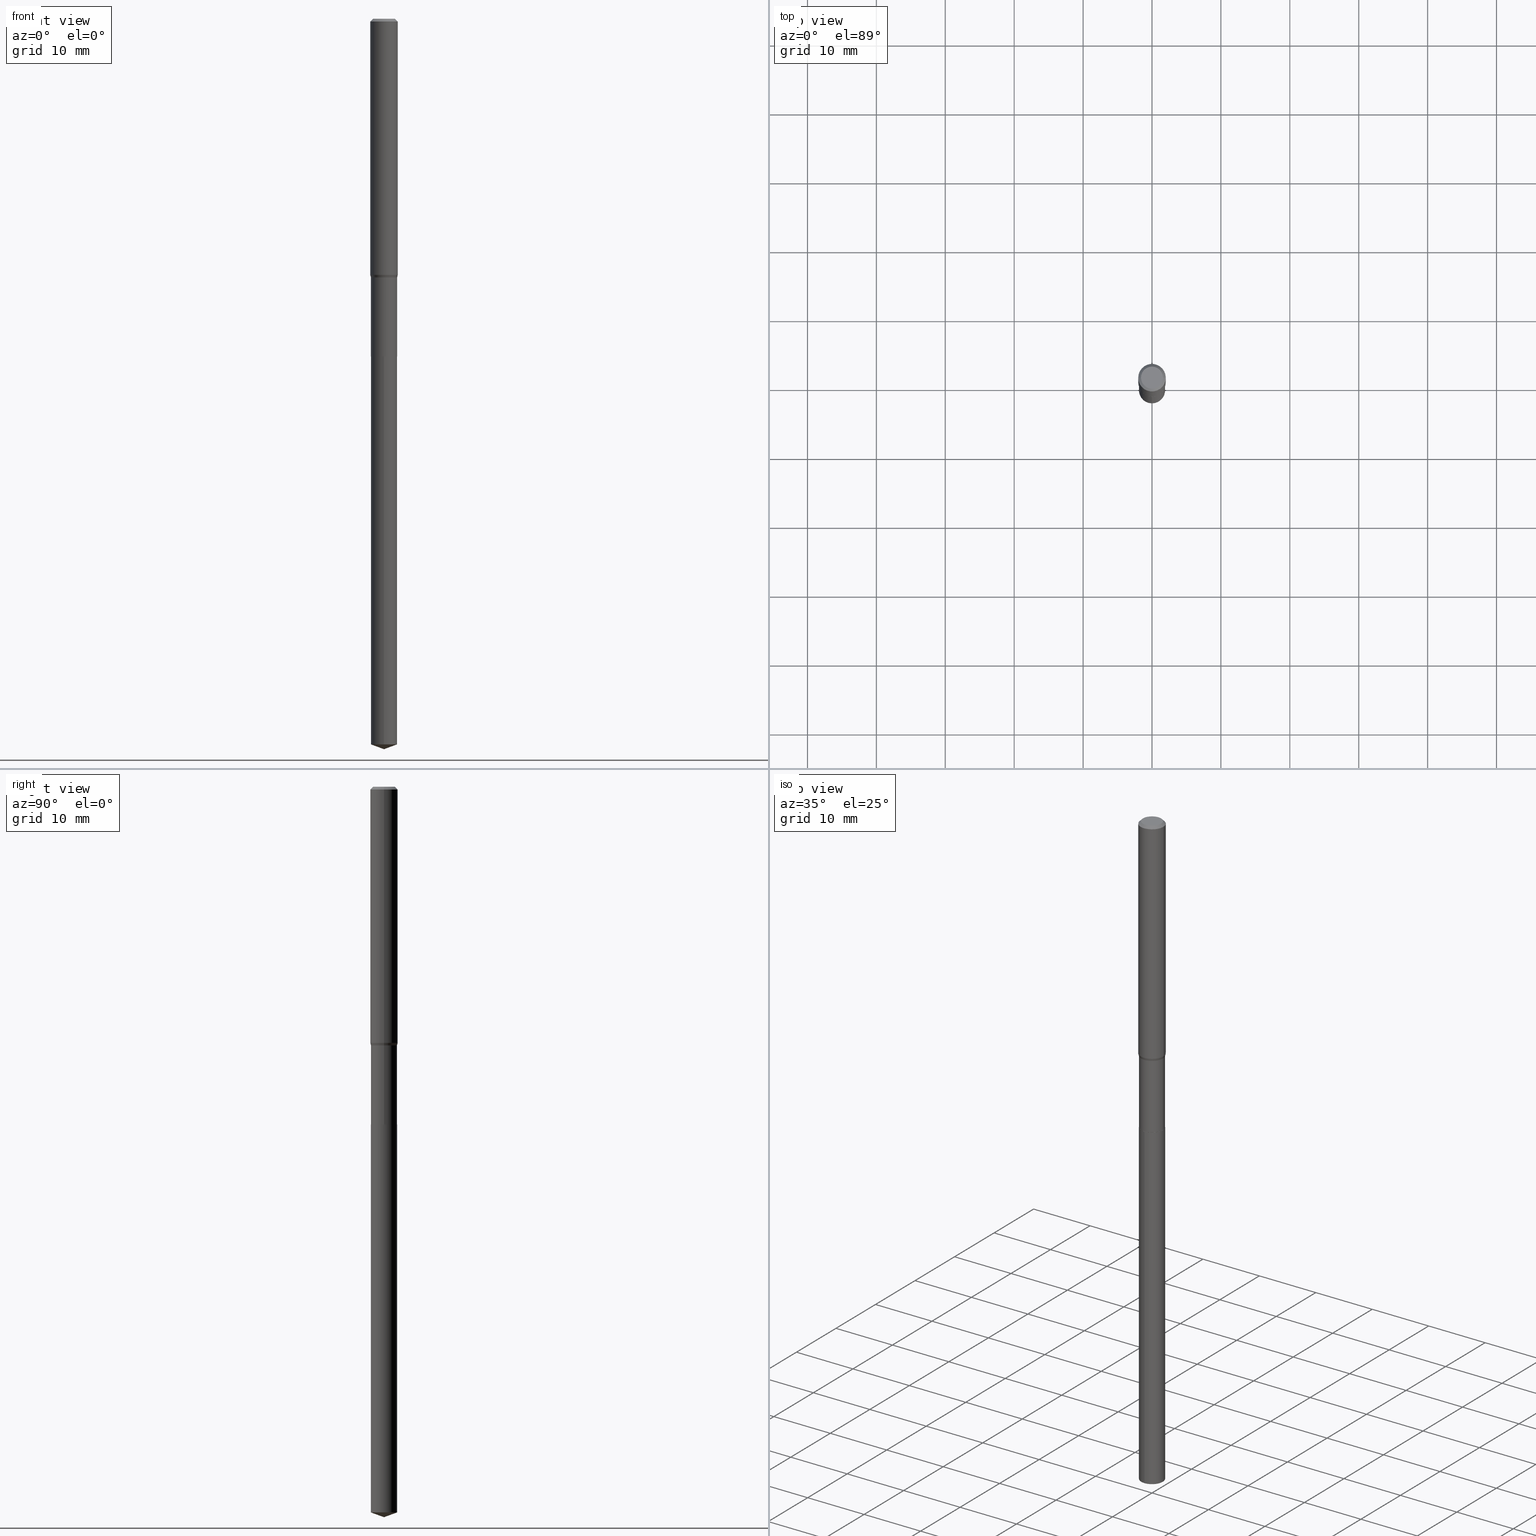
[diagram: canonical four-view strip — front | top / right | iso, engineering-drawing reading convention]
A machine part, canonical four-view strip (front | top / right | iso — engineering-drawing reading convention). The complete STEP part file that produces these views, byte-faithful:
ISO-10303-21;
HEADER;
FILE_DESCRIPTION (( 'STEP AP203' ),
    '1' );
FILE_NAME ('06059.STEP',
    '2024-04-23T19:11:40',
    ( '' ),
    ( '' ),
    'SwSTEP 2.0',
    'SolidWorks 2023',
    '' );
FILE_SCHEMA (( 'CONFIG_CONTROL_DESIGN' ));
ENDSEC;

DATA;
#1 = CARTESIAN_POINT ( 'NONE',  ( -5.223256082908854688E-16, -0.07480000000000673610, -1.929099999999999371 ) ) ;
#2 = ORIENTED_EDGE ( 'NONE', *, *, #97, .F. ) ;
#3 = ADVANCED_FACE ( 'NONE', ( #339 ), #181, .T. ) ;
#4 = CARTESIAN_POINT ( 'NONE',  ( -0.07479999999999996374, 5.314859663485546814E-16, -3.679363447510667278E-30 ) ) ;
#5 = AXIS2_PLACEMENT_3D ( 'NONE', #483, #231, #239 ) ;
#6 = EDGE_CURVE ( 'NONE', #246, #164, #54, .T. ) ;
#7 = EDGE_CURVE ( 'NONE', #168, #466, #193, .T. ) ;
#8 = EDGE_LOOP ( 'NONE', ( #327, #188, #162, #365 ) ) ;
#9 = CIRCLE ( 'NONE', #353, 0.07430000000000000493 ) ;
#10 = VERTEX_POINT ( 'NONE', #82 ) ;
#11 = ORIENTED_EDGE ( 'NONE', *, *, #428, .F. ) ;
#12 = PERSON_AND_ORGANIZATION ( #221, #323 ) ;
#13 = CC_DESIGN_PERSON_AND_ORGANIZATION_ASSIGNMENT ( #277, #426, ( #103 ) ) ;
#14 = EDGE_CURVE ( 'NONE', #319, #466, #16, .T. ) ;
#15 = EDGE_LOOP ( 'NONE', ( #356, #250, #436 ) ) ;
#16 = CIRCLE ( 'NONE', #208, 0.07480000000000000537 ) ;
#17 = ADVANCED_FACE ( 'NONE', ( #448 ), #383, .F. ) ;
#18 = DIRECTION ( 'NONE',  ( 2.445468806185136597E-29, -3.491481338843145583E-15, -1.000000000000000000 ) ) ;
#19 = ORIENTED_EDGE ( 'NONE', *, *, #251, .T. ) ;
#20 = DIRECTION ( 'NONE',  ( 1.000000000000000000, -6.982962677686268288E-15, 0.000000000000000000 ) ) ;
#21 = DIRECTION ( 'NONE',  ( 2.445434340276301154E-29, -3.491530695986275350E-15, -1.000000000000000000 ) ) ;
#22 = EDGE_CURVE ( 'NONE', #348, #168, #174, .T. ) ;
#23 = CARTESIAN_POINT ( 'NONE',  ( 3.851613369741614361E-31, -5.499083108677988307E-17, -0.01575000000000009726 ) ) ;
#24 = CARTESIAN_POINT ( 'NONE',  ( 0.07430000000000000493, -7.254250777714400708E-15, -1.929099999999999815 ) ) ;
#25 = DIRECTION ( 'NONE',  ( -2.445468806185136597E-29, 3.491481338843145583E-15, 1.000000000000000000 ) ) ;
#26 = CYLINDRICAL_SURFACE ( 'NONE', #119, 0.07480000000000000537 ) ;
#27 = UNCERTAINTY_MEASURE_WITH_UNIT (LENGTH_MEASURE( 1.000000000000000082E-05 ), #418, 'distance_accuracy_value', 'NONE');
#28 = AXIS2_PLACEMENT_3D ( 'NONE', #408, #229, #291 ) ;
#29 = CARTESIAN_POINT ( 'NONE',  ( 1.020542073125632407E-28, -1.457066547076029762E-14, -4.173199999999999577 ) ) ;
#30 = LINE ( 'NONE', #261, #472 ) ;
#31 = VECTOR ( 'NONE', #179, 39.37007874015748143 ) ;
#32 = DIRECTION ( 'NONE',  ( 1.000000000000000000, -6.982962677686265922E-15, 4.875905316334701673E-29 ) ) ;
#33 = DIRECTION ( 'NONE',  ( 1.000000000000000000, -6.982962677686268288E-15, 0.000000000000000000 ) ) ;
#34 = ORIENTED_EDGE ( 'NONE', *, *, #109, .F. ) ;
#35 = CARTESIAN_POINT ( 'NONE',  ( -0.06300000000000000044, 4.674220642376242452E-16, -3.855188123719040041E-18 ) ) ;
#36 = COORDINATED_UNIVERSAL_TIME_OFFSET ( 5, 0, .BEHIND. ) ;
#37 = EDGE_CURVE ( 'NONE', #430, #72, #9, .T. ) ;
#38 = EDGE_CURVE ( 'NONE', #207, #255, #92, .T. ) ;
#39 = LINE ( 'NONE', #235, #203 ) ;
#40 = PERSON_AND_ORGANIZATION_ROLE ( 'creator' ) ;
#41 = CARTESIAN_POINT ( 'NONE',  ( 3.577374583378773658E-29, -5.107542802561173846E-15, -1.462858399310101642 ) ) ;
#42 = APPROVAL_STATUS ( 'not_yet_approved' ) ;
#43 = ORIENTED_EDGE ( 'NONE', *, *, #329, .F. ) ;
#44 = CC_DESIGN_PERSON_AND_ORGANIZATION_ASSIGNMENT ( #390, #80, ( #259 ) ) ;
#45 = VECTOR ( 'NONE', #451, 39.37007874015748143 ) ;
#46 = APPROVAL_DATE_TIME ( #326, #120 ) ;
#47 = CC_DESIGN_APPROVAL ( #270, ( #103 ) ) ;
#48 = ORIENTED_EDGE ( 'NONE', *, *, #7, .F. ) ;
#49 = VECTOR ( 'NONE', #480, 39.37007874015748143 ) ;
#50 = ADVANCED_FACE ( 'NONE', ( #406 ), #478, .T. ) ;
#51 = EDGE_CURVE ( 'NONE', #255, #366, #247, .T. ) ;
#52 = ADVANCED_FACE ( 'NONE', ( #99 ), #417, .F. ) ;
#53 = EDGE_CURVE ( 'NONE', #168, #243, #441, .T. ) ;
#54 = CIRCLE ( 'NONE', #415, 0.06300000000000000044 ) ;
#55 = DIRECTION ( 'NONE',  ( -6.982962677686265922E-15, -1.000000000000000000, 3.475157955500790817E-15 ) ) ;
#56 = AXIS2_PLACEMENT_3D ( 'NONE', #380, #337, #145 ) ;
#57 = DIRECTION ( 'NONE',  ( -2.445468806185136597E-29, 3.491481338843145583E-15, 1.000000000000000000 ) ) ;
#58 = FACE_OUTER_BOUND ( 'NONE', #379, .T. ) ;
#59 = ORIENTED_EDGE ( 'NONE', *, *, #97, .T. ) ;
#60 = DIRECTION ( 'NONE',  ( -2.445468806185136597E-29, 3.491481338843145583E-15, 1.000000000000000000 ) ) ;
#61 = DIRECTION ( 'NONE',  ( 0.2588190451025204619, 1.565188264969629067E-15, 0.9659258262890684232 ) ) ;
#62 = ORIENTED_EDGE ( 'NONE', *, *, #227, .F. ) ;
#63 = DIRECTION ( 'NONE',  ( -2.445434340276301714E-29, 3.491530695986274955E-15, 1.000000000000000000 ) ) ;
#64 = CARTESIAN_POINT ( 'NONE',  ( 1.020528658884106088E-28, -1.457085590048992229E-14, -4.173199999999999577 ) ) ;
#65 = CIRCLE ( 'NONE', #397, 0.07430000000000000493 ) ;
#66 = APPROVAL_PERSON_ORGANIZATION ( #361, #270, #484 ) ;
#67 = CARTESIAN_POINT ( 'NONE',  ( 4.717553874011746679E-29, -6.735416650762311704E-15, -1.929099999999999815 ) ) ;
#68 = DIRECTION ( 'NONE',  ( 0.7071067811865453523, -7.319954787623248157E-15, -0.7071067811865496822 ) ) ;
#69 = CARTESIAN_POINT ( 'NONE',  ( 0.07875000000000018097, -5.657451113428968770E-15, -1.462858399310101642 ) ) ;
#70 = DIRECTION ( 'NONE',  ( -2.445434340276301714E-29, 3.491530695986274955E-15, 1.000000000000000000 ) ) ;
#71 = EDGE_CURVE ( 'NONE', #363, #226, #257, .T. ) ;
#72 = VERTEX_POINT ( 'NONE', #293 ) ;
#73 = ADVANCED_FACE ( 'NONE', ( #475 ), #213, .T. ) ;
#74 = DIRECTION ( 'NONE',  ( -1.000000000000000000, 6.982962677686265922E-15, 0.000000000000000000 ) ) ;
#75 = DIRECTION ( 'NONE',  ( 1.000000000000000000, 0.000000000000000000, 0.000000000000000000 ) ) ;
#76 = EDGE_LOOP ( 'NONE', ( #152, #202, #368, #242 ) ) ;
#77 = APPROVAL_PERSON_ORGANIZATION ( #112, #219, #200 ) ;
#78 = ADVANCED_FACE ( 'NONE', ( #373 ), #364, .T. ) ;
#79 = DIRECTION ( 'NONE',  ( -6.982962677686266711E-15, -1.000000000000000000, 0.000000000000000000 ) ) ;
#80 = PERSON_AND_ORGANIZATION_ROLE ( 'design_owner' ) ;
#81 = CONICAL_SURFACE ( 'NONE', #369, 0.07875000000000000056, 0.7853981633974452814 ) ;
#82 = CARTESIAN_POINT ( 'NONE',  ( -0.07479999999999999150, -5.414855901835204968E-15, -1.928599999999999648 ) ) ;
#83 = DIRECTION ( 'NONE',  ( 1.000000000000000000, -6.982962677686268288E-15, 0.000000000000000000 ) ) ;
#84 = COORDINATED_UNIVERSAL_TIME_OFFSET ( 5, 0, .BEHIND. ) ;
#85 = CONICAL_SURFACE ( 'NONE', #434, 108.1684023407312623, 1.221730476396025056 ) ;
#86 = CC_DESIGN_PERSON_AND_ORGANIZATION_ASSIGNMENT ( #394, #40, ( #121 ) ) ;
#87 = EDGE_CURVE ( 'NONE', #466, #319, #94, .T. ) ;
#88 = ORIENTED_EDGE ( 'NONE', *, *, #124, .T. ) ;
#89 = ORIENTED_EDGE ( 'NONE', *, *, #51, .F. ) ;
#90 = AXIS2_PLACEMENT_3D ( 'NONE', #23, #18, #175 ) ;
#91 = CARTESIAN_POINT ( 'NONE',  ( 9.427742298522557911E-47, -1.346031739168366987E-32, -3.855188123715866879E-18 ) ) ;
#92 = LINE ( 'NONE', #414, #49 ) ;
#93 = CARTESIAN_POINT ( 'NONE',  ( 0.000000000000000000, 0.000000000000000000, 0.000000000000000000 ) ) ;
#94 = CIRCLE ( 'NONE', #161, 0.07480000000000000537 ) ;
#95 = DIRECTION ( 'NONE',  ( 1.000000000000000000, -6.982962677686265922E-15, 0.000000000000000000 ) ) ;
#96 = LINE ( 'NONE', #347, #156 ) ;
#97 = EDGE_CURVE ( 'NONE', #366, #255, #167, .T. ) ;
#98 = ORIENTED_EDGE ( 'NONE', *, *, #469, .T. ) ;
#99 = FACE_OUTER_BOUND ( 'NONE', #143, .T. ) ;
#100 = DIRECTION ( 'NONE',  ( -2.445434340276301714E-29, 3.491530695986274955E-15, 1.000000000000000000 ) ) ;
#101 = DIRECTION ( 'NONE',  ( -2.445468806185136597E-29, 3.491481338843145583E-15, 1.000000000000000000 ) ) ;
#102 = CARTESIAN_POINT ( 'NONE',  ( 4.717553874011746118E-29, -6.735416650762310126E-15, -1.929099999999999593 ) ) ;
#103 = PRODUCT_DEFINITION ( 'UNKNOWN', '', #121, #477 ) ;
#104 = LOCAL_TIME ( 15, 11, 40.00000000000000000, #286 ) ;
#105 = CARTESIAN_POINT ( 'NONE',  ( 4.713871149261278955E-47, -6.730158695841834933E-33, -1.927594061857933439E-18 ) ) ;
#106 = DIMENSIONAL_EXPONENTS ( 1.000000000000000000, 0.000000000000000000, 0.000000000000000000, 0.000000000000000000, 0.000000000000000000, 0.000000000000000000, 0.000000000000000000 ) ;
#107 = CARTESIAN_POINT ( 'NONE',  ( 0.000000000000000000, 0.000000000000000000, 0.000000000000000000 ) ) ;
#108 =( NAMED_UNIT ( * ) PLANE_ANGLE_UNIT ( ) SI_UNIT ( $, .RADIAN. ) );
#109 = EDGE_CURVE ( 'NONE', #10, #363, #404, .T. ) ;
#110 = DIRECTION ( 'NONE',  ( -2.445434340276301434E-29, 3.491530695986275350E-15, 1.000000000000000000 ) ) ;
#111 = DIRECTION ( 'NONE',  ( -2.445468806185136597E-29, 3.491481338843145583E-15, 1.000000000000000000 ) ) ;
#112 = PERSON_AND_ORGANIZATION ( #221, #323 ) ;
#113 = AXIS2_PLACEMENT_3D ( 'NONE', #146, #70, #303 ) ;
#114 = CARTESIAN_POINT ( 'NONE',  ( -0.07875000000000000056, -2.021714412412896211E-15, -0.01575000000000009726 ) ) ;
#115 = APPROVAL_DATE_TIME ( #355, #270 ) ;
#116 = AXIS2_PLACEMENT_3D ( 'NONE', #439, #346, #95 ) ;
#117 = ORIENTED_EDGE ( 'NONE', *, *, #445, .T. ) ;
#118 = AXIS2_PLACEMENT_3D ( 'NONE', #199, #357, #79 ) ;
#119 = AXIS2_PLACEMENT_3D ( 'NONE', #102, #100, #218 ) ;
#120 = APPROVAL ( #169, 'UNSPECIFIED' ) ;
#121 = PRODUCT_DEFINITION_FORMATION_WITH_SPECIFIED_SOURCE ( 'ANY', '', #259, .NOT_KNOWN. ) ;
#122 = MANIFOLD_SOLID_BREP ( 'Body-Move/Copy2[1]', #485 ) ;
#123 = AXIS2_PLACEMENT_3D ( 'NONE', #67, #470, #253 ) ;
#124 = EDGE_CURVE ( 'NONE', #210, #366, #437, .T. ) ;
#125 = EDGE_LOOP ( 'NONE', ( #48, #325, #450, #287 ) ) ;
#126 = AXIS2_PLACEMENT_3D ( 'NONE', #307, #454, #75 ) ;
#127 = ADVANCED_FACE ( 'NONE', ( #260 ), #85, .T. ) ;
#128 = EDGE_CURVE ( 'NONE', #382, #226, #196, .T. ) ;
#129 = AXIS2_PLACEMENT_3D ( 'NONE', #190, #151, #32 ) ;
#130 = ORIENTED_EDGE ( 'NONE', *, *, #402, .F. ) ;
#131 = EDGE_LOOP ( 'NONE', ( #464, #192, #172, #130 ) ) ;
#132 = DIRECTION ( 'NONE',  ( -6.982962677686265922E-15, -1.000000000000000000, 3.652203200085913145E-15 ) ) ;
#133 = DIRECTION ( 'NONE',  ( -2.445468806185136597E-29, 3.491481338843145583E-15, 1.000000000000000000 ) ) ;
#134 = CC_DESIGN_PERSON_AND_ORGANIZATION_ASSIGNMENT ( #396, #367, ( #265 ) ) ;
#135 = CARTESIAN_POINT ( 'NONE',  ( 1.013877619185926276E-28, -1.447570385487174997E-14, -4.145975026476887315 ) ) ;
#136 = CC_DESIGN_SECURITY_CLASSIFICATION ( #265, ( #121 ) ) ;
#137 = LINE ( 'NONE', #294, #388 ) ;
#138 = PRODUCT_DEFINITION_SHAPE ( 'NONE', 'NONE',  #103 ) ;
#139 = CIRCLE ( 'NONE', #285, 0.07875000000000018097 ) ;
#140 = CARTESIAN_POINT ( 'NONE',  ( 4.717553874011746118E-29, -6.735416650762310126E-15, -1.929099999999999593 ) ) ;
#141 = CARTESIAN_POINT ( 'NONE',  ( 0.07479999999999999150, -7.255996518383823001E-15, -1.928599999999999648 ) ) ;
#142 = DIRECTION ( 'NONE',  ( 1.000000000000000000, -6.982962677686268288E-15, 0.000000000000000000 ) ) ;
#143 = EDGE_LOOP ( 'NONE', ( #457, #244 ) ) ;
#144 = CARTESIAN_POINT ( 'NONE',  ( 5.314859663486021117E-16, 0.07479999999999327465, -1.929099999999999815 ) ) ;
#145 = DIRECTION ( 'NONE',  ( 1.000000000000000000, -6.982962677686265922E-15, 4.876176775795935793E-29 ) ) ;
#146 = CARTESIAN_POINT ( 'NONE',  ( 4.717553874011746118E-29, -6.735416650762310126E-15, -1.929099999999999593 ) ) ;
#147 = EDGE_CURVE ( 'NONE', #226, #382, #150, .T. ) ;
#148 = EDGE_LOOP ( 'NONE', ( #442, #98, #173 ) ) ;
#149 = CARTESIAN_POINT ( 'NONE',  ( 0.07479999999999993598, -5.681338434565562884E-15, -1.477599999999999580 ) ) ;
#150 = CIRCLE ( 'NONE', #433, 0.07479999999999993598 ) ;
#151 = DIRECTION ( 'NONE',  ( -2.445468806185136597E-29, 3.491481338843145583E-15, 1.000000000000000000 ) ) ;
#152 = ORIENTED_EDGE ( 'NONE', *, *, #171, .F. ) ;
#153 = FACE_OUTER_BOUND ( 'NONE', #334, .T. ) ;
#154 = APPROVAL_STATUS ( 'not_yet_approved' ) ;
#155 = ORIENTED_EDGE ( 'NONE', *, *, #416, .F. ) ;
#156 = VECTOR ( 'NONE', #191, 39.37007874015748143 ) ;
#157 = FACE_OUTER_BOUND ( 'NONE', #131, .T. ) ;
#158 = APPLICATION_CONTEXT ( 'configuration controlled 3d designs of mechanical parts and assemblies' ) ;
#159 = CALENDAR_DATE ( 2024, 23, 4 ) ;
#160 = AXIS2_PLACEMENT_3D ( 'NONE', #224, #25, #182 ) ;
#161 = AXIS2_PLACEMENT_3D ( 'NONE', #140, #468, #132 ) ;
#162 = ORIENTED_EDGE ( 'NONE', *, *, #14, .F. ) ;
#163 = CC_DESIGN_DATE_AND_TIME_ASSIGNMENT ( #272, #240, ( #103 ) ) ;
#164 = VERTEX_POINT ( 'NONE', #299 ) ;
#165 = EDGE_CURVE ( 'NONE', #430, #10, #39, .T. ) ;
#166 = DIRECTION ( 'NONE',  ( -6.982962677686265922E-15, -1.000000000000000000, 3.652203200085913145E-15 ) ) ;
#167 = CIRCLE ( 'NONE', #116, 0.07875000000000000056 ) ;
#168 = VERTEX_POINT ( 'NONE', #424 ) ;
#169 = APPROVAL_STATUS ( 'not_yet_approved' ) ;
#170 = EDGE_LOOP ( 'NONE', ( #11, #177, #233, #295 ) ) ;
#171 = EDGE_CURVE ( 'NONE', #10, #382, #459, .T. ) ;
#172 = ORIENTED_EDGE ( 'NONE', *, *, #371, .F. ) ;
#173 = ORIENTED_EDGE ( 'NONE', *, *, #53, .F. ) ;
#174 = LINE ( 'NONE', #29, #304 ) ;
#175 = DIRECTION ( 'NONE',  ( -1.000000000000000000, 6.982962677686265922E-15, 0.000000000000000000 ) ) ;
#176 = CARTESIAN_POINT ( 'NONE',  ( 4.717553874011746679E-29, -6.735416650762311704E-15, -1.929099999999999815 ) ) ;
#177 = ORIENTED_EDGE ( 'NONE', *, *, #6, .F. ) ;
#178 = DIRECTION ( 'NONE',  ( -6.982962677686266711E-15, -1.000000000000000000, 0.000000000000000000 ) ) ;
#179 = DIRECTION ( 'NONE',  ( -2.445434340276301434E-29, 3.491530695986275350E-15, 1.000000000000000000 ) ) ;
#180 = AXIS2_PLACEMENT_3D ( 'NONE', #216, #386, #33 ) ;
#181 = CONICAL_SURFACE ( 'NONE', #487, 108.1684023407312623, 1.221730476396025056 ) ;
#182 = DIRECTION ( 'NONE',  ( 1.000000000000000000, -6.982962677686268288E-15, 0.000000000000000000 ) ) ;
#183 = DIRECTION ( 'NONE',  ( -6.561838499445186652E-15, -0.9396926207859053193, 0.3420201433256773171 ) ) ;
#184 = ORIENTED_EDGE ( 'NONE', *, *, #37, .T. ) ;
#185 = ADVANCED_FACE ( 'NONE', ( #157 ), #463, .T. ) ;
#186 = CARTESIAN_POINT ( 'NONE',  ( 4.717553874011746679E-29, -6.735416650762311704E-15, -1.929099999999999815 ) ) ;
#187 = CYLINDRICAL_SURFACE ( 'NONE', #349, 0.07875000000000008382 ) ;
#188 = ORIENTED_EDGE ( 'NONE', *, *, #7, .T. ) ;
#189 = CARTESIAN_POINT ( 'NONE',  ( 4.717553874011746118E-29, -6.735416650762310126E-15, -1.929099999999999593 ) ) ;
#190 = CARTESIAN_POINT ( 'NONE',  ( 9.427742298522557911E-47, -1.346031739168366987E-32, -3.855188123715866879E-18 ) ) ;
#191 = DIRECTION ( 'NONE',  ( -0.7071067811865453523, 2.468850131082234184E-15, -0.7071067811865496822 ) ) ;
#192 = ORIENTED_EDGE ( 'NONE', *, *, #165, .T. ) ;
#193 = LINE ( 'NONE', #144, #423 ) ;
#194 = CARTESIAN_POINT ( 'NONE',  ( 3.851613369741614361E-31, -5.499083108677988307E-17, -0.01575000000000009726 ) ) ;
#195 = COORDINATED_UNIVERSAL_TIME_OFFSET ( 5, 0, .BEHIND. ) ;
#196 = CIRCLE ( 'NONE', #160, 0.07479999999999993598 ) ;
#197 = CARTESIAN_POINT ( 'NONE',  ( 3.577374583378773658E-29, -5.107542802561173846E-15, -1.462858399310101642 ) ) ;
#198 = ORIENTED_EDGE ( 'NONE', *, *, #371, .T. ) ;
#199 = CARTESIAN_POINT ( 'NONE',  ( 1.013877619185926276E-28, -1.447570385487174997E-14, -4.145975026476887315 ) ) ;
#200 = APPROVAL_ROLE ( '' ) ;
#201 = EDGE_LOOP ( 'NONE', ( #198, #405, #401, #275 ) ) ;
#202 = ORIENTED_EDGE ( 'NONE', *, *, #109, .T. ) ;
#203 = VECTOR ( 'NONE', #271, 39.37007874015748143 ) ;
#204 = ORIENTED_EDGE ( 'NONE', *, *, #329, .T. ) ;
#205 = CALENDAR_DATE ( 2024, 23, 4 ) ;
#206 = AXIS2_PLACEMENT_3D ( 'NONE', #225, #21, #409 ) ;
#207 = VERTEX_POINT ( 'NONE', #360 ) ;
#208 = AXIS2_PLACEMENT_3D ( 'NONE', #189, #419, #166 ) ;
#209 = EDGE_LOOP ( 'NONE', ( #322, #184, #370, #34 ) ) ;
#210 = VERTEX_POINT ( 'NONE', #69 ) ;
#211 = CC_DESIGN_APPROVAL ( #120, ( #265 ) ) ;
#212 = CARTESIAN_POINT ( 'NONE',  ( 3.613424708019156582E-29, -5.159012826274630084E-15, -1.477599999999999580 ) ) ;
#213 = CONICAL_SURFACE ( 'NONE', #343, 0.07479999999999993598, 0.2617993877991491303 ) ;
#214 = ADVANCED_FACE ( 'NONE', ( #153 ), #237, .T. ) ;
#215 = DIRECTION ( 'NONE',  ( 2.438088387897960049E-29, -3.491481338843145188E-15, -1.000000000000000000 ) ) ;
#216 = CARTESIAN_POINT ( 'NONE',  ( 3.613424708019156582E-29, -5.159012826274630084E-15, -1.477599999999999580 ) ) ;
#217 = DIRECTION ( 'NONE',  ( -2.445468806185136597E-29, 3.491481338843145583E-15, 1.000000000000000000 ) ) ;
#218 = DIRECTION ( 'NONE',  ( -6.982962677686266711E-15, -1.000000000000000000, 3.652203200085913145E-15 ) ) ;
#219 = APPROVAL ( #42, 'UNSPECIFIED' ) ;
#220 = ORIENTED_EDGE ( 'NONE', *, *, #38, .T. ) ;
#221 = PERSON ( 'UNSPECIFIED', 'UNSPECIFIED', 'UNSPECIFIED', ('UNSPECIFIED'), ('UNSPECIFIED'), ('UNSPECIFIED') ) ;
#222 = ADVANCED_FACE ( 'NONE', ( #385 ), #456, .T. ) ;
#223 = VECTOR ( 'NONE', #183, 39.37007874015748854 ) ;
#224 = CARTESIAN_POINT ( 'NONE',  ( 3.613424708019156582E-29, -5.159012826274630084E-15, -1.477599999999999580 ) ) ;
#225 = CARTESIAN_POINT ( 'NONE',  ( 4.717553874011746118E-29, -6.735416650762310126E-15, -1.929099999999999593 ) ) ;
#226 = VERTEX_POINT ( 'NONE', #149 ) ;
#227 = EDGE_CURVE ( 'NONE', #164, #246, #288, .T. ) ;
#228 = CLOSED_SHELL ( 'NONE', ( #185, #262, #214, #352, #290, #222, #73, #328, #78, #52, #17, #50 ) ) ;
#229 = DIRECTION ( 'NONE',  ( -2.445468806185136597E-29, 3.491481338843145583E-15, 1.000000000000000000 ) ) ;
#230 = FACE_OUTER_BOUND ( 'NONE', #8, .T. ) ;
#231 = DIRECTION ( 'NONE',  ( -2.445468806185136597E-29, 3.491481338843145583E-15, 1.000000000000000000 ) ) ;
#232 = DIRECTION ( 'NONE',  ( 1.000000000000000000, -6.982962677686268288E-15, 0.000000000000000000 ) ) ;
#233 = ORIENTED_EDGE ( 'NONE', *, *, #432, .T. ) ;
#234 = CC_DESIGN_DATE_AND_TIME_ASSIGNMENT ( #331, #400, ( #265 ) ) ;
#235 = CARTESIAN_POINT ( 'NONE',  ( -0.07430000000000000493, -6.207483398092557034E-15, -1.929099999999999815 ) ) ;
#236 = EDGE_LOOP ( 'NONE', ( #155, #359 ) ) ;
#237 = CYLINDRICAL_SURFACE ( 'NONE', #5, 0.07875000000000008382 ) ;
#238 = APPROVAL_DATE_TIME ( #274, #219 ) ;
#239 = DIRECTION ( 'NONE',  ( 1.000000000000000000, -6.982962677686267499E-15, 4.876176775795935232E-29 ) ) ;
#240 = DATE_TIME_ROLE ( 'creation_date' ) ;
#241 = SECURITY_CLASSIFICATION_LEVEL ( 'unclassified' ) ;
#242 = ORIENTED_EDGE ( 'NONE', *, *, #128, .F. ) ;
#243 = VERTEX_POINT ( 'NONE', #311 ) ;
#244 = ORIENTED_EDGE ( 'NONE', *, *, #227, .T. ) ;
#245 = LOCAL_TIME ( 15, 11, 40.00000000000000000, #36 ) ;
#246 = VERTEX_POINT ( 'NONE', #35 ) ;
#247 = CIRCLE ( 'NONE', #392, 0.07875000000000000056 ) ;
#248 = ORIENTED_EDGE ( 'NONE', *, *, #147, .T. ) ;
#249 = CALENDAR_DATE ( 2024, 23, 4 ) ;
#250 = ORIENTED_EDGE ( 'NONE', *, *, #22, .T. ) ;
#251 = EDGE_CURVE ( 'NONE', #207, #210, #281, .T. ) ;
#252 = LOCAL_TIME ( 15, 11, 40.00000000000000000, #195 ) ;
#253 = DIRECTION ( 'NONE',  ( 1.000000000000000000, -6.982962677686268288E-15, 0.000000000000000000 ) ) ;
#254 = CARTESIAN_POINT ( 'NONE',  ( 0.07875000000000000056, -6.048991419545733705E-16, -0.01575000000000009726 ) ) ;
#255 = VERTEX_POINT ( 'NONE', #114 ) ;
#256 = AXIS2_PLACEMENT_3D ( 'NONE', #41, #350, #306 ) ;
#257 = LINE ( 'NONE', #341, #332 ) ;
#258 = FACE_OUTER_BOUND ( 'NONE', #431, .T. ) ;
#259 = PRODUCT ( '06059', '06059', '', ( #310 ) ) ;
#260 = FACE_OUTER_BOUND ( 'NONE', #148, .T. ) ;
#261 = CARTESIAN_POINT ( 'NONE',  ( 0.07479999999999993598, -5.681338434565562884E-15, -1.477599999999999580 ) ) ;
#262 = ADVANCED_FACE ( 'NONE', ( #420 ), #81, .T. ) ;
#263 = VECTOR ( 'NONE', #338, 39.37007874015748143 ) ;
#264 = DIRECTION ( 'NONE',  ( 6.676917655467953930E-15, 0.9396926207859076507, 0.3420201433256707668 ) ) ;
#265 = SECURITY_CLASSIFICATION ( '', '', #241 ) ;
#266 = CARTESIAN_POINT ( 'NONE',  ( -0.07479999999999993598, -5.414855901835204968E-15, -1.477599999999999580 ) ) ;
#267 = AXIS2_PLACEMENT_3D ( 'NONE', #314, #276, #83 ) ;
#268 = DIRECTION ( 'NONE',  ( -1.000000000000000000, 6.982962677686265922E-15, -4.876176775795935793E-29 ) ) ;
#269 = LENGTH_MEASURE_WITH_UNIT ( LENGTH_MEASURE( 0.02539999999999999897 ), #300 );
#270 = APPROVAL ( #154, 'UNSPECIFIED' ) ;
#271 = DIRECTION ( 'NONE',  ( -0.7071067811864147901, 7.493145998869874533E-15, 0.7071067811866802444 ) ) ;
#272 = DATE_AND_TIME ( #489, #403 ) ;
#273 = DIRECTION ( 'NONE',  ( 1.000000000000000000, -6.982962677686269866E-15, 0.000000000000000000 ) ) ;
#274 = DATE_AND_TIME ( #159, #245 ) ;
#275 = ORIENTED_EDGE ( 'NONE', *, *, #71, .F. ) ;
#276 = DIRECTION ( 'NONE',  ( -2.445468806185136597E-29, 3.491481338843145583E-15, 1.000000000000000000 ) ) ;
#277 = PERSON_AND_ORGANIZATION ( #221, #323 ) ;
#278 = APPLICATION_PROTOCOL_DEFINITION ( 'international standard', 'config_control_design', 1994, #158 ) ;
#279 = CIRCLE ( 'NONE', #118, 0.07480000000000000537 ) ;
#280 = ORIENTED_EDGE ( 'NONE', *, *, #428, .T. ) ;
#281 = CIRCLE ( 'NONE', #256, 0.07875000000000018097 ) ;
#282 = SHAPE_DEFINITION_REPRESENTATION ( #138, #313 ) ;
#283 = MANIFOLD_SOLID_BREP ( 'Body-Move/Copy2[2]', #228 ) ;
#284 = ORIENTED_EDGE ( 'NONE', *, *, #124, .F. ) ;
#285 = AXIS2_PLACEMENT_3D ( 'NONE', #197, #111, #273 ) ;
#286 = COORDINATED_UNIVERSAL_TIME_OFFSET ( 5, 0, .BEHIND. ) ;
#287 = ORIENTED_EDGE ( 'NONE', *, *, #87, .F. ) ;
#288 = CIRCLE ( 'NONE', #129, 0.06300000000000000044 ) ;
#289 = ORIENTED_EDGE ( 'NONE', *, *, #308, .F. ) ;
#290 = ADVANCED_FACE ( 'NONE', ( #393 ), #453, .T. ) ;
#291 = DIRECTION ( 'NONE',  ( 1.000000000000000000, -6.982962677686262766E-15, 0.000000000000000000 ) ) ;
#292 = LINE ( 'NONE', #24, #263 ) ;
#293 = CARTESIAN_POINT ( 'NONE',  ( 0.07430000000000000493, -7.254250777714400708E-15, -1.929099999999999815 ) ) ;
#294 = CARTESIAN_POINT ( 'NONE',  ( 0.07875000000000000056, -5.952550484112880131E-16, -0.01575000000000009726 ) ) ;
#295 = ORIENTED_EDGE ( 'NONE', *, *, #51, .T. ) ;
#296 = APPLICATION_CONTEXT ( 'configuration controlled 3d designs of mechanical parts and assemblies' ) ;
#297 = CARTESIAN_POINT ( 'NONE',  ( 0.07875000000000008382, -5.499083108677941345E-16, 3.839989210939303220E-30 ) ) ;
#298 = CARTESIAN_POINT ( 'NONE',  ( -5.223256082908855674E-16, -0.07480000000000674998, -1.929099999999999371 ) ) ;
#299 = CARTESIAN_POINT ( 'NONE',  ( 0.06300000000000000044, -5.137332111354472216E-16, -3.855188123712532709E-18 ) ) ;
#300 =( LENGTH_UNIT ( ) NAMED_UNIT ( * ) SI_UNIT ( $, .METRE. ) );
#301 = CIRCLE ( 'NONE', #465, 0.07479999999999999150 ) ;
#302 = DIRECTION ( 'NONE',  ( -2.445434340276301714E-29, 3.491530695986274955E-15, 1.000000000000000000 ) ) ;
#303 = DIRECTION ( 'NONE',  ( -6.982962677686266711E-15, -1.000000000000000000, 3.652203200085913145E-15 ) ) ;
#304 = VECTOR ( 'NONE', #264, 39.37007874015748143 ) ;
#305 = AXIS2_PLACEMENT_3D ( 'NONE', #422, #389, #488 ) ;
#306 = DIRECTION ( 'NONE',  ( 1.000000000000000000, -6.982962677686269866E-15, 0.000000000000000000 ) ) ;
#307 = CARTESIAN_POINT ( 'NONE',  ( 0.000000000000000000, 0.000000000000000000, 0.000000000000000000 ) ) ;
#308 = EDGE_CURVE ( 'NONE', #210, #207, #139, .T. ) ;
#309 = DIRECTION ( 'NONE',  ( 2.445468806185136597E-29, -3.491481338843145583E-15, -1.000000000000000000 ) ) ;
#310 = MECHANICAL_CONTEXT ( 'NONE', #158, 'mechanical' ) ;
#311 = CARTESIAN_POINT ( 'NONE',  ( -5.223256082908315304E-16, -0.07480000000001449378, -4.145975026476887315 ) ) ;
#312 = CALENDAR_DATE ( 2024, 23, 4 ) ;
#313 = ADVANCED_BREP_SHAPE_REPRESENTATION ( '06059', ( #122, #283, #126 ), #362 ) ;
#314 = CARTESIAN_POINT ( 'NONE',  ( 4.717553874011746679E-29, -6.735416650762311704E-15, -1.929099999999999815 ) ) ;
#315 = EDGE_CURVE ( 'NONE', #243, #168, #279, .T. ) ;
#316 = PERSON_AND_ORGANIZATION ( #221, #323 ) ;
#317 = AXIS2_PLACEMENT_3D ( 'NONE', #105, #215, #268 ) ;
#318 = ORIENTED_EDGE ( 'NONE', *, *, #14, .T. ) ;
#319 = VERTEX_POINT ( 'NONE', #1 ) ;
#320 = EDGE_CURVE ( 'NONE', #243, #319, #342, .T. ) ;
#321 = CC_DESIGN_PERSON_AND_ORGANIZATION_ASSIGNMENT ( #316, #460, ( #121 ) ) ;
#322 = ORIENTED_EDGE ( 'NONE', *, *, #165, .F. ) ;
#323 = ORGANIZATION ( 'UNSPECIFIED', 'UNSPECIFIED', '' ) ;
#324 = ORIENTED_EDGE ( 'NONE', *, *, #38, .F. ) ;
#325 = ORIENTED_EDGE ( 'NONE', *, *, #53, .T. ) ;
#326 = DATE_AND_TIME ( #205, #462 ) ;
#327 = ORIENTED_EDGE ( 'NONE', *, *, #315, .T. ) ;
#328 = ADVANCED_FACE ( 'NONE', ( #58 ), #187, .T. ) ;
#329 = EDGE_CURVE ( 'NONE', #382, #207, #449, .T. ) ;
#330 = EDGE_LOOP ( 'NONE', ( #318, #340 ) ) ;
#331 = DATE_AND_TIME ( #249, #104 ) ;
#332 = VECTOR ( 'NONE', #375, 39.37007874015748143 ) ;
#333 = DIRECTION ( 'NONE',  ( -2.445468806185136597E-29, 3.491481338843145583E-15, 1.000000000000000000 ) ) ;
#334 = EDGE_LOOP ( 'NONE', ( #425, #220, #2, #284 ) ) ;
#335 = DIRECTION ( 'NONE',  ( 1.000000000000000000, -6.982962677686265922E-15, 0.000000000000000000 ) ) ;
#336 = PRODUCT_RELATED_PRODUCT_CATEGORY ( 'detail', '', ( #259 ) ) ;
#337 = DIRECTION ( 'NONE',  ( -2.438088387897960049E-29, 3.491481338843145188E-15, 1.000000000000000000 ) ) ;
#338 = DIRECTION ( 'NONE',  ( 0.7071067811864147901, -2.468850131080866299E-15, 0.7071067811866802444 ) ) ;
#339 = FACE_OUTER_BOUND ( 'NONE', #15, .T. ) ;
#340 = ORIENTED_EDGE ( 'NONE', *, *, #87, .T. ) ;
#341 = CARTESIAN_POINT ( 'NONE',  ( 0.07479999999999996374, -5.223256082909324060E-16, 3.647380228295358062E-30 ) ) ;
#342 = LINE ( 'NONE', #298, #31 ) ;
#343 = AXIS2_PLACEMENT_3D ( 'NONE', #212, #60, #20 ) ;
#344 = CARTESIAN_POINT ( 'NONE',  ( 3.613424708019156582E-29, -5.159012826274630084E-15, -1.477599999999999580 ) ) ;
#345 = CYLINDRICAL_SURFACE ( 'NONE', #113, 0.07480000000000000537 ) ;
#346 = DIRECTION ( 'NONE',  ( -2.445468806185136597E-29, 3.491481338843145583E-15, 1.000000000000000000 ) ) ;
#347 = CARTESIAN_POINT ( 'NONE',  ( -0.07875000000000000056, 4.949174797810136167E-16, -0.01575000000000009726 ) ) ;
#348 = VERTEX_POINT ( 'NONE', #476 ) ;
#349 = AXIS2_PLACEMENT_3D ( 'NONE', #93, #133, #381 ) ;
#350 = DIRECTION ( 'NONE',  ( -2.445468806185136597E-29, 3.491481338843145583E-15, 1.000000000000000000 ) ) ;
#351 = CARTESIAN_POINT ( 'NONE',  ( 4.716331139608653877E-29, -6.733670910092890200E-15, -1.928599999999999648 ) ) ;
#352 = ADVANCED_FACE ( 'NONE', ( #258 ), #398, .T. ) ;
#353 = AXIS2_PLACEMENT_3D ( 'NONE', #186, #217, #377 ) ;
#354 = DIRECTION ( 'NONE',  ( 1.000000000000000000, -6.982962677686265133E-15, 4.876176775795935793E-29 ) ) ;
#355 = DATE_AND_TIME ( #312, #252 ) ;
#356 = ORIENTED_EDGE ( 'NONE', *, *, #469, .F. ) ;
#357 = DIRECTION ( 'NONE',  ( -2.445434340276301714E-29, 3.491530695986274955E-15, 1.000000000000000000 ) ) ;
#358 = APPLICATION_PROTOCOL_DEFINITION ( 'international standard', 'config_control_design', 1994, #296 ) ;
#359 = ORIENTED_EDGE ( 'NONE', *, *, #37, .F. ) ;
#360 = CARTESIAN_POINT ( 'NONE',  ( -0.07875000000000018097, -4.547990398150093467E-15, -1.462858399310101642 ) ) ;
#361 = PERSON_AND_ORGANIZATION ( #221, #323 ) ;
#362 =( GEOMETRIC_REPRESENTATION_CONTEXT ( 3 ) GLOBAL_UNCERTAINTY_ASSIGNED_CONTEXT ( ( #27 ) ) GLOBAL_UNIT_ASSIGNED_CONTEXT ( ( #418, #108, #452 ) ) REPRESENTATION_CONTEXT ( 'NONE', 'WORKASPACE' ) );
#363 = VERTEX_POINT ( 'NONE', #141 ) ;
#364 = CONICAL_SURFACE ( 'NONE', #90, 0.07875000000000000056, 0.7853981633974452814 ) ;
#365 = ORIENTED_EDGE ( 'NONE', *, *, #320, .F. ) ;
#366 = VERTEX_POINT ( 'NONE', #254 ) ;
#367 = PERSON_AND_ORGANIZATION_ROLE ( 'classification_officer' ) ;
#368 = ORIENTED_EDGE ( 'NONE', *, *, #71, .T. ) ;
#369 = AXIS2_PLACEMENT_3D ( 'NONE', #194, #309, #74 ) ;
#370 = ORIENTED_EDGE ( 'NONE', *, *, #402, .T. ) ;
#371 = EDGE_CURVE ( 'NONE', #363, #10, #301, .T. ) ;
#372 = COORDINATED_UNIVERSAL_TIME_OFFSET ( 5, 0, .BEHIND. ) ;
#373 = FACE_OUTER_BOUND ( 'NONE', #170, .T. ) ;
#374 = DIRECTION ( 'NONE',  ( 1.000000000000000000, -6.982962677686265922E-15, 4.875905316334701673E-29 ) ) ;
#375 = DIRECTION ( 'NONE',  ( -2.445468806185136877E-29, 3.491481338843145188E-15, 1.000000000000000000 ) ) ;
#376 = CARTESIAN_POINT ( 'NONE',  ( -0.07479999999999993598, -4.627526859926075304E-15, -1.477599999999999580 ) ) ;
#377 = DIRECTION ( 'NONE',  ( 1.000000000000000000, -6.982962677686268288E-15, 0.000000000000000000 ) ) ;
#378 = FACE_OUTER_BOUND ( 'NONE', #125, .T. ) ;
#379 = EDGE_LOOP ( 'NONE', ( #324, #19, #88, #89 ) ) ;
#380 = CARTESIAN_POINT ( 'NONE',  ( -2.353759951343705452E-30, -1.382829412664081625E-14, -1.929099999999999815 ) ) ;
#381 = DIRECTION ( 'NONE',  ( 1.000000000000000000, -6.982962677686267499E-15, 4.876176775795935232E-29 ) ) ;
#382 = VERTEX_POINT ( 'NONE', #266 ) ;
#383 = PLANE ( 'NONE',  #56 ) ;
#384 = CARTESIAN_POINT ( 'NONE',  ( -0.07430000000000000493, -6.204834170918445044E-15, -1.929099999999999815 ) ) ;
#385 = FACE_OUTER_BOUND ( 'NONE', #76, .T. ) ;
#386 = DIRECTION ( 'NONE',  ( -2.445468806185136597E-29, 3.491481338843145583E-15, 1.000000000000000000 ) ) ;
#387 = VECTOR ( 'NONE', #447, 39.37007874015748854 ) ;
#388 = VECTOR ( 'NONE', #68, 39.37007874015748143 ) ;
#389 = DIRECTION ( 'NONE',  ( -2.445468806185136597E-29, 3.491481338843145583E-15, 1.000000000000000000 ) ) ;
#390 = PERSON_AND_ORGANIZATION ( #221, #323 ) ;
#391 = ORIENTED_EDGE ( 'NONE', *, *, #251, .F. ) ;
#392 = AXIS2_PLACEMENT_3D ( 'NONE', #446, #57, #335 ) ;
#393 = FACE_OUTER_BOUND ( 'NONE', #201, .T. ) ;
#394 = PERSON_AND_ORGANIZATION ( #221, #323 ) ;
#395 = DIRECTION ( 'NONE',  ( -2.445468806185136597E-29, 3.491481338843145583E-15, 1.000000000000000000 ) ) ;
#396 = PERSON_AND_ORGANIZATION ( #221, #323 ) ;
#397 = AXIS2_PLACEMENT_3D ( 'NONE', #176, #471, #232 ) ;
#398 = CONICAL_SURFACE ( 'NONE', #180, 0.07479999999999993598, 0.2617993877991491303 ) ;
#399 = VECTOR ( 'NONE', #443, 39.37007874015748143 ) ;
#400 = DATE_TIME_ROLE ( 'classification_date' ) ;
#401 = ORIENTED_EDGE ( 'NONE', *, *, #147, .F. ) ;
#402 = EDGE_CURVE ( 'NONE', #72, #363, #292, .T. ) ;
#403 = LOCAL_TIME ( 15, 11, 40.00000000000000000, #84 ) ;
#404 = CIRCLE ( 'NONE', #28, 0.07479999999999999150 ) ;
#405 = ORIENTED_EDGE ( 'NONE', *, *, #171, .T. ) ;
#406 = FACE_OUTER_BOUND ( 'NONE', #209, .T. ) ;
#407 = DIRECTION ( 'NONE',  ( 1.000000000000000000, -6.982962677686262766E-15, 0.000000000000000000 ) ) ;
#408 = CARTESIAN_POINT ( 'NONE',  ( 4.716331139608653877E-29, -6.733670910092890200E-15, -1.928599999999999648 ) ) ;
#409 = DIRECTION ( 'NONE',  ( 6.982962677686265922E-15, 1.000000000000000000, -3.491530695986275350E-15 ) ) ;
#410 = ORIENTED_EDGE ( 'NONE', *, *, #432, .F. ) ;
#411 = CARTESIAN_POINT ( 'NONE',  ( -8.607158945353725676E-28, 1.228910777390313726E-13, 35.19687874015748008 ) ) ;
#412 = LINE ( 'NONE', #64, #223 ) ;
#413 = ADVANCED_FACE ( 'NONE', ( #438 ), #444, .F. ) ;
#414 = CARTESIAN_POINT ( 'NONE',  ( -0.07875000000000008382, 5.595524044110794920E-16, -3.873661383575742696E-30 ) ) ;
#415 = AXIS2_PLACEMENT_3D ( 'NONE', #91, #333, #374 ) ;
#416 = EDGE_CURVE ( 'NONE', #72, #430, #65, .T. ) ;
#417 = PLANE ( 'NONE',  #317 ) ;
#418 =( CONVERSION_BASED_UNIT ( 'INCH', #269 ) LENGTH_UNIT ( ) NAMED_UNIT ( #106 ) );
#419 = DIRECTION ( 'NONE',  ( -2.445434340276301714E-29, 3.491530695986274955E-15, 1.000000000000000000 ) ) ;
#420 = FACE_OUTER_BOUND ( 'NONE', #490, .T. ) ;
#421 = ORIENTED_EDGE ( 'NONE', *, *, #445, .F. ) ;
#422 = CARTESIAN_POINT ( 'NONE',  ( 0.000000000000000000, 0.000000000000000000, 0.000000000000000000 ) ) ;
#423 = VECTOR ( 'NONE', #110, 39.37007874015748143 ) ;
#424 = CARTESIAN_POINT ( 'NONE',  ( 5.314859663486563458E-16, 0.07479999999998554472, -4.145975026476887315 ) ) ;
#425 = ORIENTED_EDGE ( 'NONE', *, *, #308, .T. ) ;
#426 = PERSON_AND_ORGANIZATION_ROLE ( 'creator' ) ;
#427 = CARTESIAN_POINT ( 'NONE',  ( -8.607158945353725676E-28, 1.228910777390313726E-13, 35.19687874015748008 ) ) ;
#428 = EDGE_CURVE ( 'NONE', #164, #366, #137, .T. ) ;
#429 = AXIS2_PLACEMENT_3D ( 'NONE', #107, #395, #354 ) ;
#430 = VERTEX_POINT ( 'NONE', #384 ) ;
#431 = EDGE_LOOP ( 'NONE', ( #248, #204, #289, #421 ) ) ;
#432 = EDGE_CURVE ( 'NONE', #246, #255, #96, .T. ) ;
#433 = AXIS2_PLACEMENT_3D ( 'NONE', #344, #101, #142 ) ;
#434 = AXIS2_PLACEMENT_3D ( 'NONE', #411, #63, #479 ) ;
#435 = DIRECTION ( 'NONE',  ( -2.445434340276301714E-29, 3.491530695986274955E-15, 1.000000000000000000 ) ) ;
#436 = ORIENTED_EDGE ( 'NONE', *, *, #315, .F. ) ;
#437 = LINE ( 'NONE', #297, #399 ) ;
#438 = FACE_OUTER_BOUND ( 'NONE', #330, .T. ) ;
#439 = CARTESIAN_POINT ( 'NONE',  ( 3.851613369741614361E-31, -5.499083108677988307E-17, -0.01575000000000009726 ) ) ;
#440 = DIRECTION ( 'NONE',  ( -2.445468806185136597E-29, 3.491481338843145583E-15, 1.000000000000000000 ) ) ;
#441 = CIRCLE ( 'NONE', #458, 0.07480000000000000537 ) ;
#442 = ORIENTED_EDGE ( 'NONE', *, *, #22, .F. ) ;
#443 = DIRECTION ( 'NONE',  ( -2.445468806185136877E-29, 3.491481338843145188E-15, 1.000000000000000000 ) ) ;
#444 = PLANE ( 'NONE',  #206 ) ;
#445 = EDGE_CURVE ( 'NONE', #226, #210, #30, .T. ) ;
#446 = CARTESIAN_POINT ( 'NONE',  ( 3.851613369741614361E-31, -5.499083108677988307E-17, -0.01575000000000009726 ) ) ;
#447 = DIRECTION ( 'NONE',  ( -0.2588190451025204619, 5.211531920934543942E-15, 0.9659258262890684232 ) ) ;
#448 = FACE_OUTER_BOUND ( 'NONE', #236, .T. ) ;
#449 = LINE ( 'NONE', #376, #387 ) ;
#450 = ORIENTED_EDGE ( 'NONE', *, *, #320, .T. ) ;
#451 = DIRECTION ( 'NONE',  ( -2.445468806185136877E-29, 3.491481338843145188E-15, 1.000000000000000000 ) ) ;
#452 =( NAMED_UNIT ( * ) SI_UNIT ( $, .STERADIAN. ) SOLID_ANGLE_UNIT ( ) );
#453 = CYLINDRICAL_SURFACE ( 'NONE', #305, 0.07479999999999996374 ) ;
#454 = DIRECTION ( 'NONE',  ( 0.000000000000000000, 0.000000000000000000, 1.000000000000000000 ) ) ;
#455 = CC_DESIGN_APPROVAL ( #219, ( #121 ) ) ;
#456 = CYLINDRICAL_SURFACE ( 'NONE', #429, 0.07479999999999996374 ) ;
#457 = ORIENTED_EDGE ( 'NONE', *, *, #6, .T. ) ;
#458 = AXIS2_PLACEMENT_3D ( 'NONE', #135, #302, #178 ) ;
#459 = LINE ( 'NONE', #4, #45 ) ;
#460 = PERSON_AND_ORGANIZATION_ROLE ( 'design_supplier' ) ;
#461 = ADVANCED_FACE ( 'NONE', ( #378 ), #26, .T. ) ;
#462 = LOCAL_TIME ( 15, 11, 40.00000000000000000, #372 ) ;
#463 = CONICAL_SURFACE ( 'NONE', #267, 0.07430000000000000493, 0.7853981633972606513 ) ;
#464 = ORIENTED_EDGE ( 'NONE', *, *, #416, .T. ) ;
#465 = AXIS2_PLACEMENT_3D ( 'NONE', #351, #440, #407 ) ;
#466 = VERTEX_POINT ( 'NONE', #481 ) ;
#467 = APPROVAL_ROLE ( '' ) ;
#468 = DIRECTION ( 'NONE',  ( -2.445434340276301714E-29, 3.491530695986274955E-15, 1.000000000000000000 ) ) ;
#469 = EDGE_CURVE ( 'NONE', #348, #243, #412, .T. ) ;
#470 = DIRECTION ( 'NONE',  ( -2.445468806185136597E-29, 3.491481338843145583E-15, 1.000000000000000000 ) ) ;
#471 = DIRECTION ( 'NONE',  ( -2.445468806185136597E-29, 3.491481338843145583E-15, 1.000000000000000000 ) ) ;
#472 = VECTOR ( 'NONE', #61, 39.37007874015748854 ) ;
#473 = APPROVAL_PERSON_ORGANIZATION ( #12, #120, #467 ) ;
#474 = ADVANCED_FACE ( 'NONE', ( #230 ), #345, .T. ) ;
#475 = FACE_OUTER_BOUND ( 'NONE', #482, .T. ) ;
#476 = CARTESIAN_POINT ( 'NONE',  ( 1.020528658884106088E-28, -1.457085590048992229E-14, -4.173199999999999577 ) ) ;
#477 = DESIGN_CONTEXT ( 'detailed design', #296, 'design' ) ;
#478 = CONICAL_SURFACE ( 'NONE', #123, 0.07430000000000000493, 0.7853981633972606513 ) ;
#479 = DIRECTION ( 'NONE',  ( -6.982962677686265922E-15, -1.000000000000000000, 3.475157955500790817E-15 ) ) ;
#480 = DIRECTION ( 'NONE',  ( -2.445468806185136877E-29, 3.491481338843145188E-15, 1.000000000000000000 ) ) ;
#481 = CARTESIAN_POINT ( 'NONE',  ( 5.314859663486567403E-16, 0.07479999999999327465, -1.929099999999999815 ) ) ;
#482 = EDGE_LOOP ( 'NONE', ( #43, #486, #117, #391 ) ) ;
#483 = CARTESIAN_POINT ( 'NONE',  ( 0.000000000000000000, 0.000000000000000000, 0.000000000000000000 ) ) ;
#484 = APPROVAL_ROLE ( '' ) ;
#485 = CLOSED_SHELL ( 'NONE', ( #474, #3, #127, #461, #413 ) ) ;
#486 = ORIENTED_EDGE ( 'NONE', *, *, #128, .T. ) ;
#487 = AXIS2_PLACEMENT_3D ( 'NONE', #427, #435, #55 ) ;
#488 = DIRECTION ( 'NONE',  ( 1.000000000000000000, -6.982962677686265133E-15, 4.876176775795935793E-29 ) ) ;
#489 = CALENDAR_DATE ( 2024, 23, 4 ) ;
#490 = EDGE_LOOP ( 'NONE', ( #62, #280, #59, #410 ) ) ;
ENDSEC;
END-ISO-10303-21;
